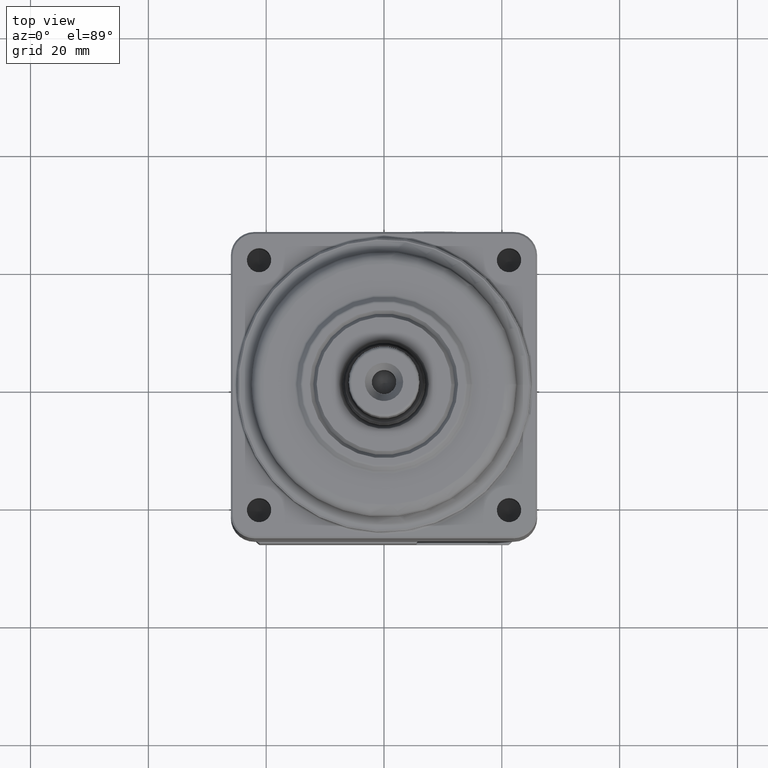
[diagram: clean part render]
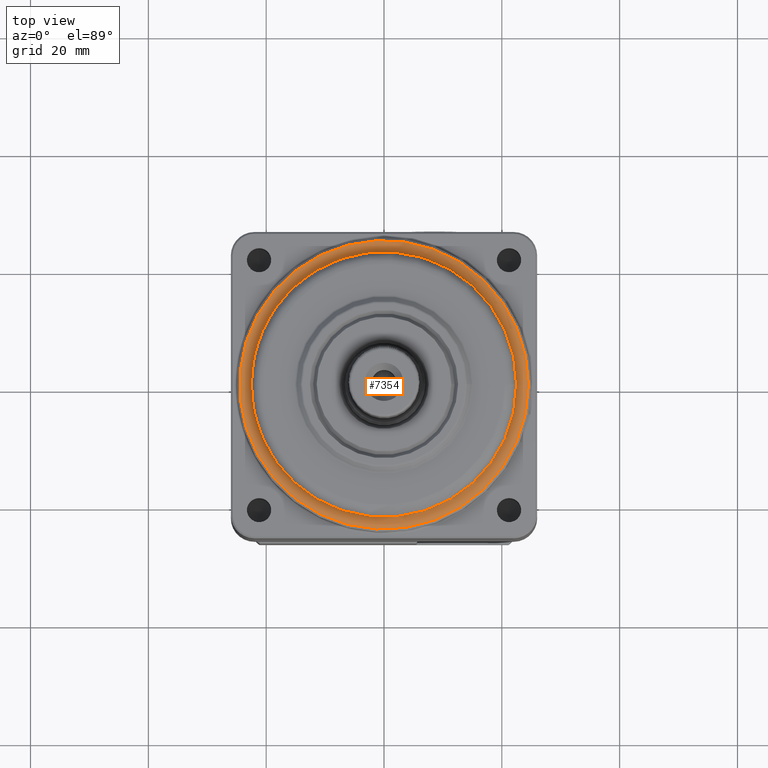
[diagram: same view with one face highlighted and labeled with its STEP entity id]
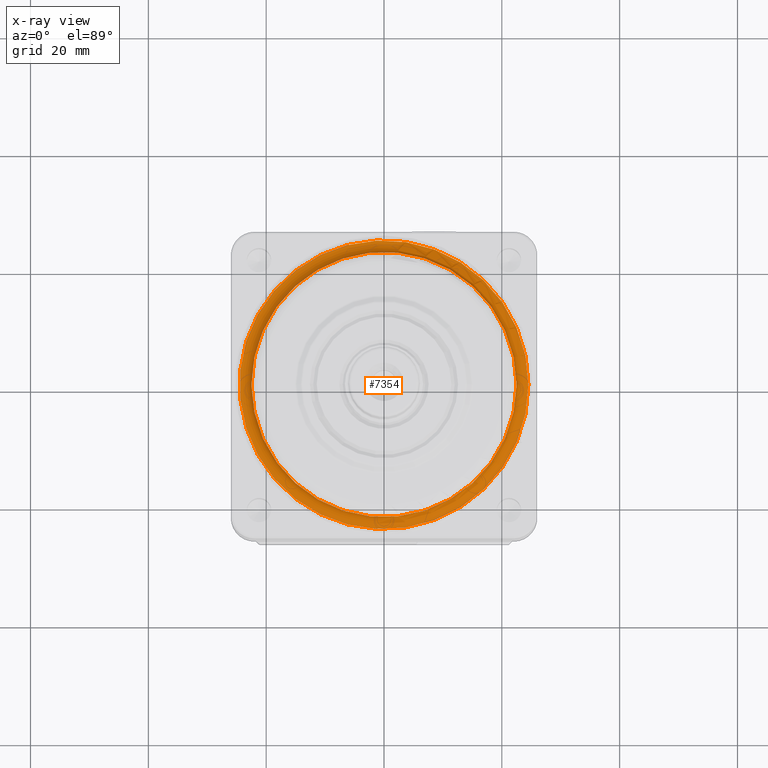
[diagram: x-ray of the same camera — body ghosted, the highlighted face saturated]
A machine part, top view. The second image highlights one B-rep face of the part: STEP entity #7354.
The next image is the same camera in x-ray: the body ghosted, the highlighted face saturated — about 0% of this face is hidden behind the body in this view.
In plain terms, the highlighted toroidal blend (fillet) surface has major radius 24.5 mm and minor (blend) radius 2 mm.
Its self-contained STEP definition (entity closure, byte-faithful):
#7327=CARTESIAN_POINT('',(0.0,0.0,31.000000000000007));
#7328=DIRECTION('',(0.0,0.0,-1.0));
#7329=DIRECTION('',(-1.0,0.0,0.0));
#7330=AXIS2_PLACEMENT_3D('',#7327,#7328,#7329);
#7331=TOROIDAL_SURFACE('',#7330,24.5,2.0);
#7332=CARTESIAN_POINT('',(22.5,-2.755455E-015,31.000000000000007));
#7333=VERTEX_POINT('',#7332);
#7334=CARTESIAN_POINT('',(0.0,0.0,31.000000000000007));
#7335=DIRECTION('',(0.0,0.0,-1.0));
#7336=DIRECTION('',(-1.0,0.0,0.0));
#7337=AXIS2_PLACEMENT_3D('',#7334,#7335,#7336);
#7338=CIRCLE('',#7337,22.5);
#7339=EDGE_CURVE('',#7333,#7333,#7338,.T.);
#7340=ORIENTED_EDGE('',*,*,#7339,.T.);
#7341=EDGE_LOOP('',(#7340));
#7342=FACE_OUTER_BOUND('',#7341,.T.);
#7343=CARTESIAN_POINT('',(24.5,3.000385E-015,29.000000000000004));
#7344=VERTEX_POINT('',#7343);
#7345=CARTESIAN_POINT('',(0.0,0.0,29.000000000000004));
#7346=DIRECTION('',(0.0,0.0,1.0));
#7347=DIRECTION('',(-1.0,0.0,0.0));
#7348=AXIS2_PLACEMENT_3D('',#7345,#7346,#7347);
#7349=CIRCLE('',#7348,24.5);
#7350=EDGE_CURVE('',#7344,#7344,#7349,.T.);
#7351=ORIENTED_EDGE('',*,*,#7350,.T.);
#7352=EDGE_LOOP('',(#7351));
#7353=FACE_BOUND('',#7352,.T.);
#7354=ADVANCED_FACE('',(#7342,#7353),#7331,.F.);